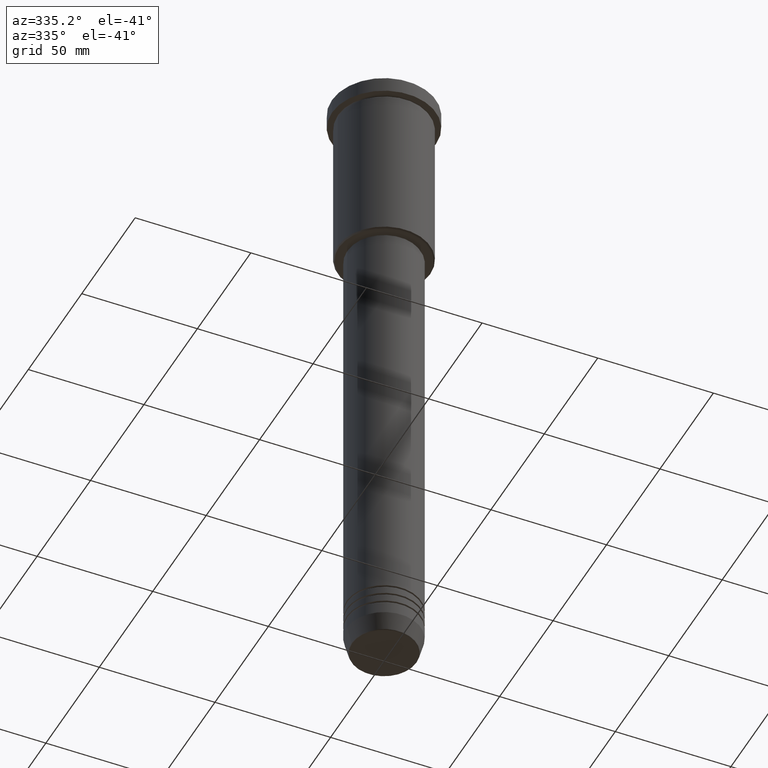
[diagram: clean part render]
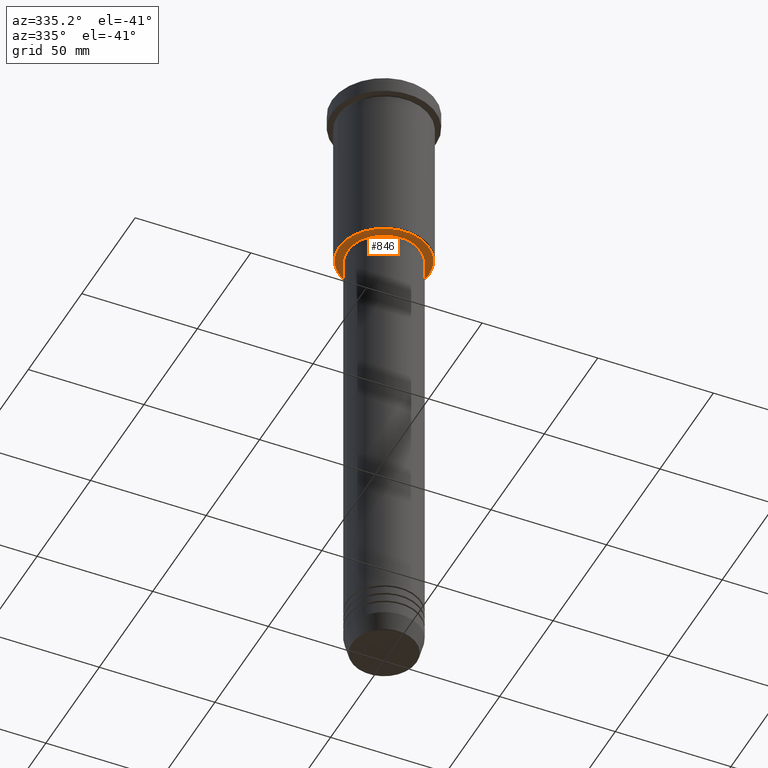
[diagram: same view with one face highlighted and labeled with its STEP entity id]
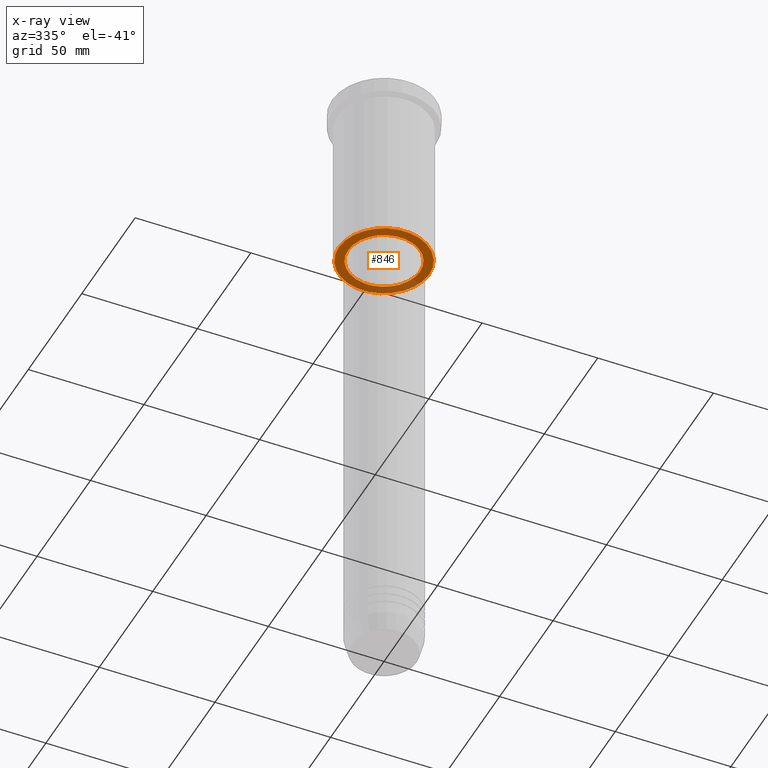
[diagram: x-ray of the same camera — body ghosted, the highlighted face saturated]
A machine part, auxiliary view. The second image highlights one B-rep face of the part: STEP entity #846.
The next image is the same camera in x-ray: the body ghosted, the highlighted face saturated — about 26% of this face is hidden behind the body in this view.
In plain terms, the highlighted planar face has unit normal (0, 0, -1).
Its self-contained STEP definition (entity closure, byte-faithful):
#1 = ORIENTED_EDGE ( 'NONE', *, *, #1089, .T. ) ;
#40 = PLANE ( 'NONE',  #830 ) ;
#122 = ORIENTED_EDGE ( 'NONE', *, *, #366, .T. ) ;
#125 = DIRECTION ( 'NONE',  ( 1.000000000000000000, 0.000000000000000000, 0.000000000000000000 ) ) ;
#127 = DIRECTION ( 'NONE',  ( -1.000000000000000000, 0.000000000000000000, 0.000000000000000000 ) ) ;
#136 = CARTESIAN_POINT ( 'NONE',  ( -15.50000000000000000, 1.898202538678397557E-15, -76.00000000000001421 ) ) ;
#143 = CARTESIAN_POINT ( 'NONE',  ( 0.000000000000000000, 0.000000000000000000, -76.00000000000001421 ) ) ;
#144 = EDGE_CURVE ( 'NONE', #197, #478, #243, .T. ) ;
#170 = AXIS2_PLACEMENT_3D ( 'NONE', #295, #397, #671 ) ;
#179 = EDGE_LOOP ( 'NONE', ( #122, #1 ) ) ;
#197 = VERTEX_POINT ( 'NONE', #573 ) ;
#219 = CIRCLE ( 'NONE', #866, 15.50000000000000000 ) ;
#243 = CIRCLE ( 'NONE', #170, 19.49999999999993250 ) ;
#267 = ORIENTED_EDGE ( 'NONE', *, *, #144, .T. ) ;
#295 = CARTESIAN_POINT ( 'NONE',  ( 0.000000000000000000, 0.000000000000000000, -76.00000000000001421 ) ) ;
#314 = EDGE_LOOP ( 'NONE', ( #267, #1169 ) ) ;
#366 = EDGE_CURVE ( 'NONE', #605, #804, #374, .T. ) ;
#374 = CIRCLE ( 'NONE', #1037, 15.50000000000000000 ) ;
#386 = DIRECTION ( 'NONE',  ( -0.000000000000000000, -0.000000000000000000, 1.000000000000000000 ) ) ;
#397 = DIRECTION ( 'NONE',  ( 0.000000000000000000, 0.000000000000000000, -1.000000000000000000 ) ) ;
#409 = FACE_OUTER_BOUND ( 'NONE', #314, .T. ) ;
#440 = CIRCLE ( 'NONE', #1105, 19.49999999999993250 ) ;
#478 = VERTEX_POINT ( 'NONE', #980 ) ;
#573 = CARTESIAN_POINT ( 'NONE',  ( 19.49999999999993250, 0.000000000000000000, -76.00000000000001421 ) ) ;
#605 = VERTEX_POINT ( 'NONE', #1078 ) ;
#671 = DIRECTION ( 'NONE',  ( -1.000000000000000000, 0.000000000000000000, 0.000000000000000000 ) ) ;
#746 = EDGE_CURVE ( 'NONE', #478, #197, #440, .T. ) ;
#748 = DIRECTION ( 'NONE',  ( 1.000000000000000000, 0.000000000000000000, 0.000000000000000000 ) ) ;
#780 = CARTESIAN_POINT ( 'NONE',  ( 0.000000000000000000, 20.00000000000000355, -76.00000000000001421 ) ) ;
#804 = VERTEX_POINT ( 'NONE', #136 ) ;
#830 = AXIS2_PLACEMENT_3D ( 'NONE', #780, #1045, #1033 ) ;
#845 = DIRECTION ( 'NONE',  ( -0.000000000000000000, -0.000000000000000000, 1.000000000000000000 ) ) ;
#846 = ADVANCED_FACE ( 'NONE', ( #409, #862 ), #40, .T. ) ;
#862 = FACE_BOUND ( 'NONE', #179, .T. ) ;
#866 = AXIS2_PLACEMENT_3D ( 'NONE', #928, #845, #748 ) ;
#928 = CARTESIAN_POINT ( 'NONE',  ( 0.000000000000000000, 0.000000000000000000, -76.00000000000001421 ) ) ;
#980 = CARTESIAN_POINT ( 'NONE',  ( -19.49999999999993250, 2.418677428316018782E-15, -76.00000000000001421 ) ) ;
#1007 = CARTESIAN_POINT ( 'NONE',  ( 0.000000000000000000, 0.000000000000000000, -76.00000000000001421 ) ) ;
#1028 = DIRECTION ( 'NONE',  ( 0.000000000000000000, 0.000000000000000000, -1.000000000000000000 ) ) ;
#1033 = DIRECTION ( 'NONE',  ( -1.000000000000000000, 0.000000000000000000, -0.000000000000000000 ) ) ;
#1037 = AXIS2_PLACEMENT_3D ( 'NONE', #1007, #386, #125 ) ;
#1045 = DIRECTION ( 'NONE',  ( 0.000000000000000000, 0.000000000000000000, -1.000000000000000000 ) ) ;
#1078 = CARTESIAN_POINT ( 'NONE',  ( 15.50000000000000000, 0.000000000000000000, -76.00000000000001421 ) ) ;
#1089 = EDGE_CURVE ( 'NONE', #804, #605, #219, .T. ) ;
#1105 = AXIS2_PLACEMENT_3D ( 'NONE', #143, #1028, #127 ) ;
#1169 = ORIENTED_EDGE ( 'NONE', *, *, #746, .T. ) ;